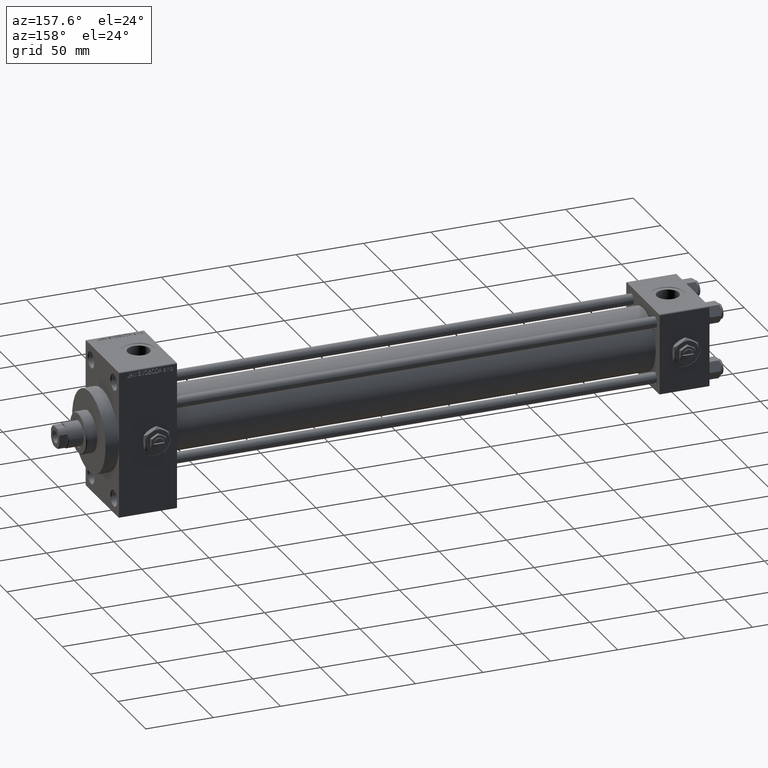
[diagram: clean part render]
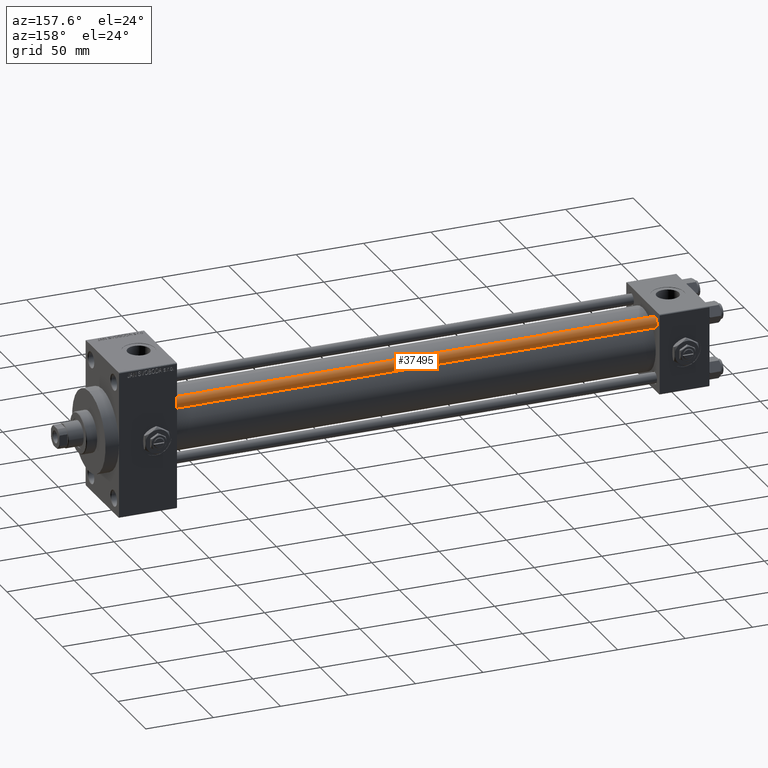
[diagram: same view with one face highlighted and labeled with its STEP entity id]
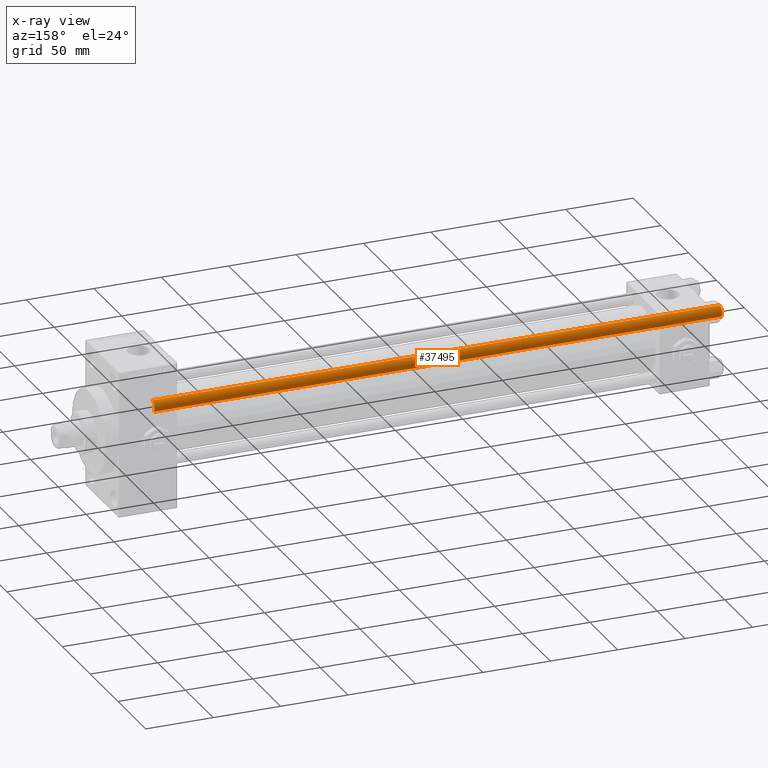
[diagram: x-ray of the same camera — body ghosted, the highlighted face saturated]
A machine part, auxiliary view. The second image highlights one B-rep face of the part: STEP entity #37495.
The next image is the same camera in x-ray: the body ghosted, the highlighted face saturated — about 0% of this face is hidden behind the body in this view.
In plain terms, the highlighted cylindrical surface (edge-blend (fillet) strip) has radius 4 mm, axis along (-1, -0, 0).
Its self-contained STEP definition (entity closure, byte-faithful):
#713 = CYLINDRICAL_SURFACE ( 'NONE', #13198, 4.000000000000000000 ) ;
#2332 = DIRECTION ( 'NONE',  ( 0.000000000000000000, 0.000000000000000000, -1.000000000000000000 ) ) ;
#2804 = CARTESIAN_POINT ( 'NONE',  ( 0.000000000000000000, 0.000000000000000000, 0.5000000000001114664 ) ) ;
#5097 = DIRECTION ( 'NONE',  ( -0.000000000000000000, -0.000000000000000000, -1.000000000000000000 ) ) ;
#6539 = ORIENTED_EDGE ( 'NONE', *, *, #32554, .T. ) ;
#6548 = DIRECTION ( 'NONE',  ( 1.000000000000000000, 0.000000000000000000, 0.000000000000000000 ) ) ;
#6740 = AXIS2_PLACEMENT_3D ( 'NONE', #2804, #32951, #6548 ) ;
#8820 = LINE ( 'NONE', #24031, #13168 ) ;
#9312 = CARTESIAN_POINT ( 'NONE',  ( -4.000000000000000000, 0.000000000000000000, 421.4999999999999432 ) ) ;
#9793 = CARTESIAN_POINT ( 'NONE',  ( 0.000000000000000000, 0.000000000000000000, 421.4999999999999432 ) ) ;
#13168 = VECTOR ( 'NONE', #5097, 1000.000000000000000 ) ;
#13198 = AXIS2_PLACEMENT_3D ( 'NONE', #35090, #15150, #45610 ) ;
#14686 = AXIS2_PLACEMENT_3D ( 'NONE', #9793, #2332, #47965 ) ;
#14893 = CARTESIAN_POINT ( 'NONE',  ( -4.000000000000000000, 0.000000000000000000, 422.0000000000000000 ) ) ;
#15150 = DIRECTION ( 'NONE',  ( -0.000000000000000000, -0.000000000000000000, -1.000000000000000000 ) ) ;
#15735 = VERTEX_POINT ( 'NONE', #9312 ) ;
#16182 = VERTEX_POINT ( 'NONE', #29072 ) ;
#17122 = CARTESIAN_POINT ( 'NONE',  ( -4.000000000000000000, 0.000000000000000000, 0.5000000000001114664 ) ) ;
#17672 = VERTEX_POINT ( 'NONE', #22097 ) ;
#17721 = ORIENTED_EDGE ( 'NONE', *, *, #34396, .T. ) ;
#18684 = CIRCLE ( 'NONE', #14686, 4.000000000000000000 ) ;
#19884 = FACE_OUTER_BOUND ( 'NONE', #37176, .T. ) ;
#21878 = VECTOR ( 'NONE', #34829, 1000.000000000000000 ) ;
#22097 = CARTESIAN_POINT ( 'NONE',  ( 4.000000000000000000, 4.898587196589412829E-16, 0.5000000000001114664 ) ) ;
#24031 = CARTESIAN_POINT ( 'NONE',  ( 4.000000000000000000, 4.898587196589412829E-16, 422.0000000000000000 ) ) ;
#28204 = CIRCLE ( 'NONE', #6740, 4.000000000000000000 ) ;
#29072 = CARTESIAN_POINT ( 'NONE',  ( 4.000000000000000000, 4.898587196589412829E-16, 421.4999999999999432 ) ) ;
#30635 = EDGE_CURVE ( 'NONE', #15735, #16182, #18684, .T. ) ;
#32554 = EDGE_CURVE ( 'NONE', #16182, #17672, #8820, .T. ) ;
#32951 = DIRECTION ( 'NONE',  ( -0.000000000000000000, -0.000000000000000000, 1.000000000000000000 ) ) ;
#34396 = EDGE_CURVE ( 'NONE', #17672, #36794, #28204, .T. ) ;
#34579 = LINE ( 'NONE', #14893, #21878 ) ;
#34829 = DIRECTION ( 'NONE',  ( -0.000000000000000000, -0.000000000000000000, -1.000000000000000000 ) ) ;
#35090 = CARTESIAN_POINT ( 'NONE',  ( 0.000000000000000000, 0.000000000000000000, 422.0000000000000000 ) ) ;
#35738 = EDGE_CURVE ( 'NONE', #15735, #36794, #34579, .T. ) ;
#36794 = VERTEX_POINT ( 'NONE', #17122 ) ;
#37176 = EDGE_LOOP ( 'NONE', ( #37978, #6539, #17721, #44004 ) ) ;
#37495 = ADVANCED_FACE ( 'NONE', ( #19884 ), #713, .T. ) ;
#37978 = ORIENTED_EDGE ( 'NONE', *, *, #30635, .T. ) ;
#44004 = ORIENTED_EDGE ( 'NONE', *, *, #35738, .F. ) ;
#45610 = DIRECTION ( 'NONE',  ( -1.000000000000000000, 0.000000000000000000, 0.000000000000000000 ) ) ;
#47965 = DIRECTION ( 'NONE',  ( 1.000000000000000000, 0.000000000000000000, 0.000000000000000000 ) ) ;